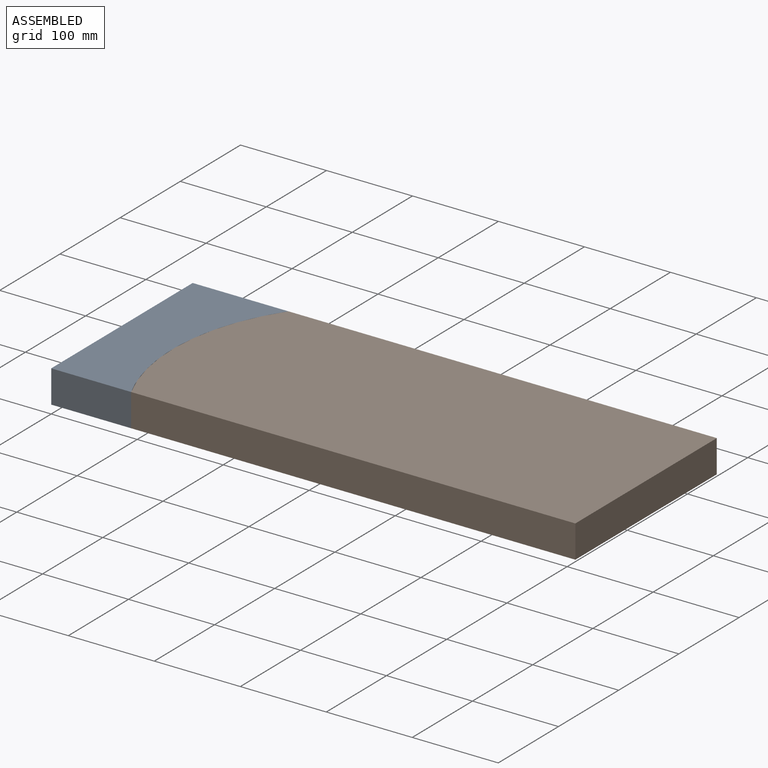
[diagram: assembled view]
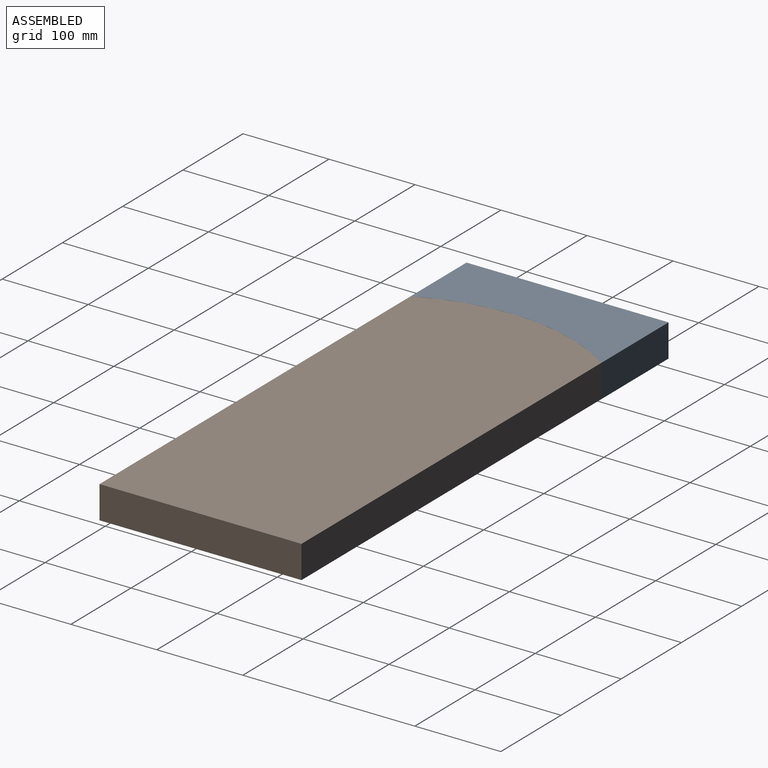
[diagram: assembled view, second angle]
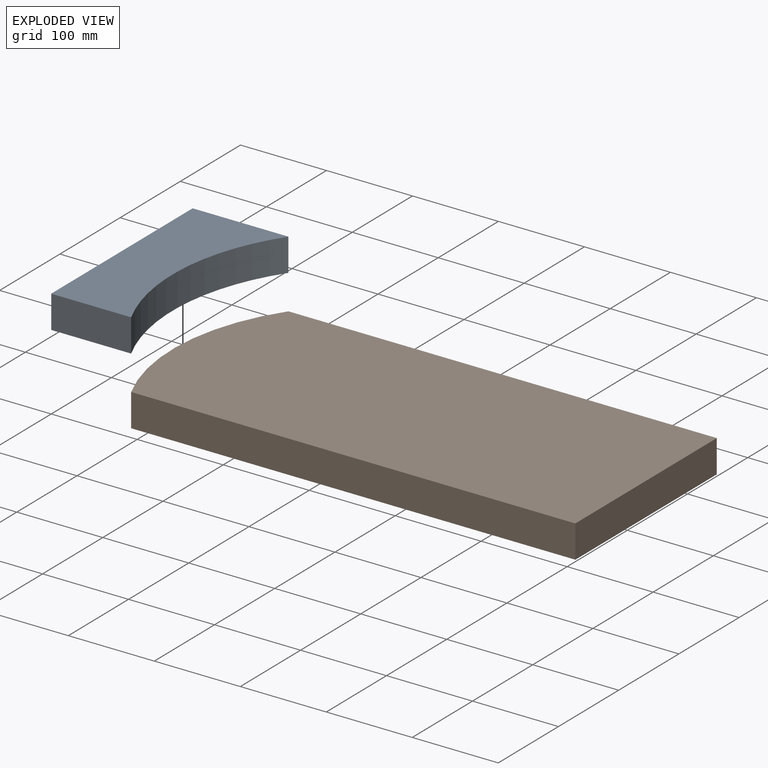
[diagram: exploded view]
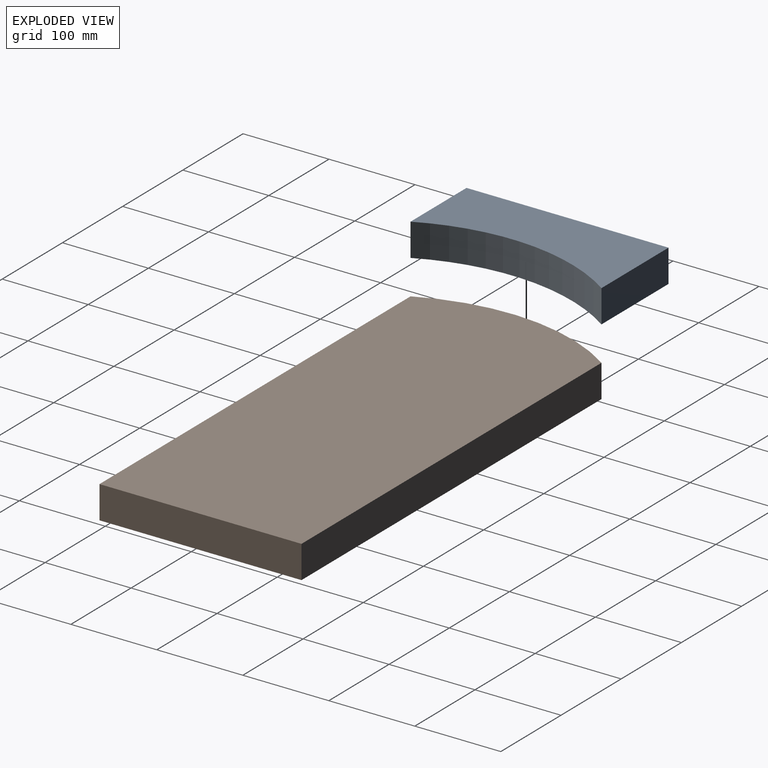
[diagram: exploded view, second angle]
ASSEMBLY  parts=2 mates=2
PART A: 6 faces, bbox 111.4x235x38.1 mm
  f0: plane 234.95x38.1mm, normal (-1,0,0), area 8951.6mm2, adj f1,f3,f4,f5
  f1: plane 92.95x38.1mm, normal (0,-1,0), area 3541.5mm2, adj f0,f2,f4,f5
  f2: cylinder r=234.95mm len=234.95mm, axis (0,0,-1), area 9405.8mm2, adj f1,f3,f4,f5
  f3: plane 111.36x38.1mm, normal (0,1,0), area 4242.8mm2, adj f0,f2,f4,f5
  f4: plane 234.95x111.36mm, normal (0,0,1), area 18952.2mm2, adj f0,f1,f2,f3
  f5: plane 234.95x111.36mm, normal (0,0,-1), area 18952.2mm2, adj f0,f1,f2,f3
PART B: 6 faces, bbox 539.8x235x38.1 mm
  f0: cylinder r=234.95mm len=234.95mm, axis (0,0,-1), area 9405.8mm2, adj f1,f3,f4,f5
  f1: plane 516.65x38.1mm, normal (0,-1,0), area 19684.2mm2, adj f0,f2,f4,f5
  f2: plane 234.95x38.1mm, normal (1,0,0), area 8951.6mm2, adj f1,f3,f4,f5
  f3: plane 498.24x38.1mm, normal (0,1,0), area 18983mm2, adj f0,f2,f4,f5
  f4: plane 539.75x234.95mm, normal (0,0,1), area 124273.4mm2, adj f0,f1,f2,f3
  f5: plane 539.75x234.95mm, normal (0,0,-1), area 124273.4mm2, adj f0,f1,f2,f3
PLACE A at identity
PLACE B rot(axis=(0,0,-1),0deg) t=(0,0,0)mm
MATE revolute A.f2 <-> B.f0  axis (0,0,-1) through (304.8,101.6,19.05)mm
MATE planar A.f4 <-> B.f4  axis (0,0,1) through (41.03,121.68,38.1)mm
